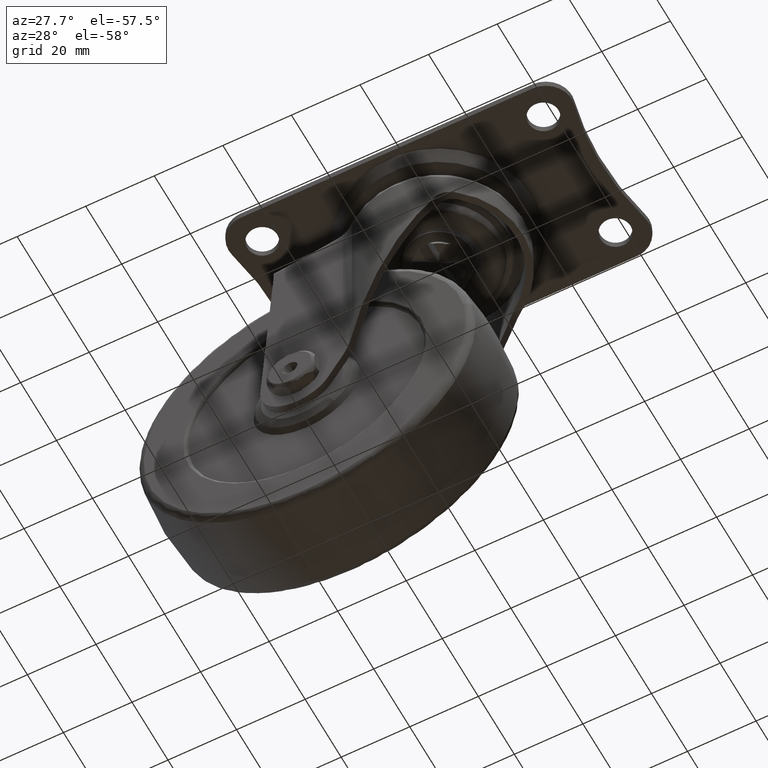
[diagram: clean part render]
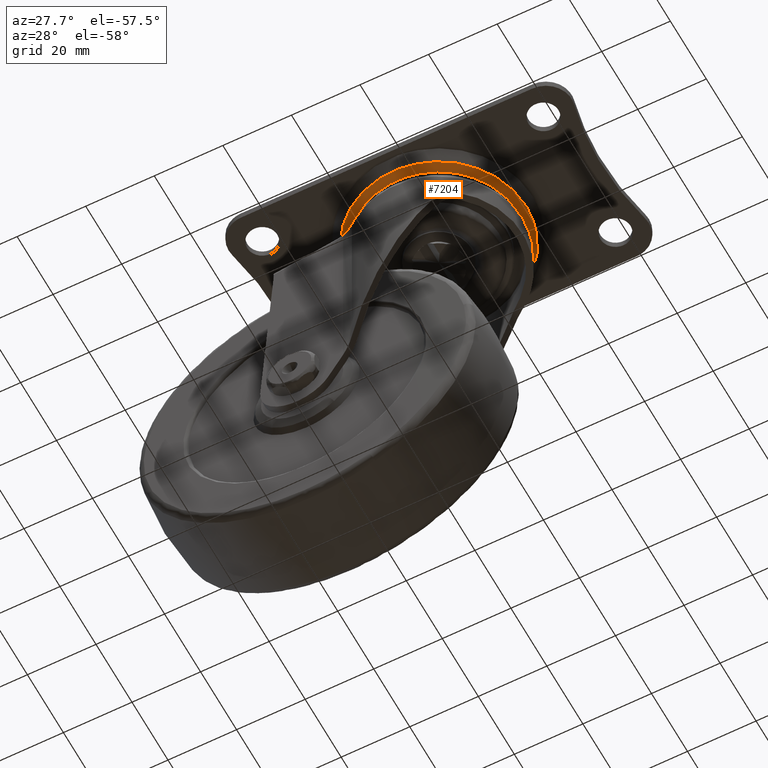
[diagram: same view with one face highlighted and labeled with its STEP entity id]
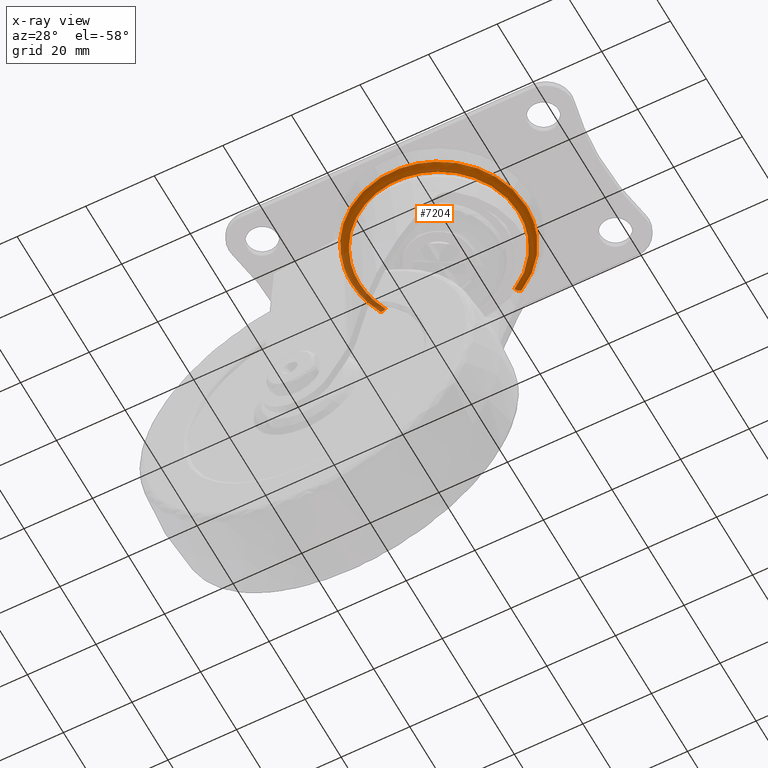
[diagram: x-ray of the same camera — body ghosted, the highlighted face saturated]
A machine part, auxiliary view. The second image highlights one B-rep face of the part: STEP entity #7204.
The next image is the same camera in x-ray: the body ghosted, the highlighted face saturated — about 13% of this face is hidden behind the body in this view.
In plain terms, the highlighted face is a freeform B-spline surface patch.
Its self-contained STEP definition (entity closure, byte-faithful):
#6093=CARTESIAN_POINT('',(1.998703049109578,-25.395930148328841,-3.840951160034021));
#6094=VERTEX_POINT('',#6093);
#6095=CARTESIAN_POINT('',(-23.687793413712789,-9.372114231411690,-3.840951160032201));
#6096=VERTEX_POINT('',#6095);
#6097=CARTESIAN_POINT('',(1.998703049109579,-25.395930148328837,-3.840951160034021));
#6098=CARTESIAN_POINT('',(1.000894236022355,-25.474459405002914,-3.840951160040765));
#6099=CARTESIAN_POINT('',(0.0,-25.474459405002911,-3.840951160040765));
#6100=CARTESIAN_POINT('',(-17.316874192751222,-25.474459405002918,-3.840951160040765));
#6101=CARTESIAN_POINT('',(-23.687793413712789,-9.372114231411690,-3.840951160032201));
#6109=(BOUNDED_CURVE()B_SPLINE_CURVE(2,(#6097,#6098,#6099,#6100,#6101),.UNSPECIFIED.,.F.,.U.)B_SPLINE_CURVE_WITH_KNOTS((3,2,3),(0.736331300632266,0.750000000000000,0.937532549938777),.UNSPECIFIED.)CURVE()GEOMETRIC_REPRESENTATION_ITEM()RATIONAL_B_SPLINE_CURVE((0.969723356170771,0.983986122580764,1.0,0.780291951264548,0.890203187500555))REPRESENTATION_ITEM(''));
#6110=EDGE_CURVE('',#6094,#6096,#6109,.T.);
#6170=CARTESIAN_POINT('',(-25.474459405002900,-1.421085E-014,-3.840951160040765));
#6171=VERTEX_POINT('',#6170);
#6172=CARTESIAN_POINT('',(-23.687793413712789,-9.372114231411690,-3.840951160032201));
#6173=CARTESIAN_POINT('',(-25.474459405002904,-4.856358889998769,-3.840951160040765));
#6174=CARTESIAN_POINT('',(-25.474459405002900,-1.421085E-014,-3.840951160040765));
#6182=(BOUNDED_CURVE()B_SPLINE_CURVE(2,(#6172,#6173,#6174),.UNSPECIFIED.,.F.,.U.)B_SPLINE_CURVE_WITH_KNOTS((3,3),(0.937532549938777,1.0),.UNSPECIFIED.)CURVE()GEOMETRIC_REPRESENTATION_ITEM()RATIONAL_B_SPLINE_CURVE((0.890203187500556,0.926814829922000,1.0))REPRESENTATION_ITEM(''));
#6183=EDGE_CURVE('',#6096,#6171,#6182,.T.);
#6262=CARTESIAN_POINT('',(25.474459405002900,-1.421085E-014,-3.840951160040765));
#6263=VERTEX_POINT('',#6262);
#6264=CARTESIAN_POINT('',(25.474459405002900,-1.421085E-014,-3.840951160040765));
#6265=CARTESIAN_POINT('',(25.474459405002900,-23.548348054048720,-3.840951160040765));
#6266=CARTESIAN_POINT('',(1.998703049109579,-25.395930148328837,-3.840951160034022));
#6274=(BOUNDED_CURVE()B_SPLINE_CURVE(2,(#6264,#6265,#6266),.UNSPECIFIED.,.F.,.U.)B_SPLINE_CURVE_WITH_KNOTS((3,3),(0.500000000000000,0.736331300632266),.UNSPECIFIED.)CURVE()GEOMETRIC_REPRESENTATION_ITEM()RATIONAL_B_SPLINE_CURVE((1.0,0.723120658605783,0.969723356170771))REPRESENTATION_ITEM(''));
#6275=EDGE_CURVE('',#6263,#6094,#6274,.T.);
#6277=CARTESIAN_POINT('',(12.427443421680310,22.237507323791181,-3.840951160132944));
#6278=VERTEX_POINT('',#6277);
#6279=CARTESIAN_POINT('',(12.427443421680309,22.237507323791178,-3.840951160132944));
#6280=CARTESIAN_POINT('',(25.474459405002897,14.946175134784154,-3.840951160040766));
#6281=CARTESIAN_POINT('',(25.474459405002900,-1.421085E-014,-3.840951160040765));
#6289=(BOUNDED_CURVE()B_SPLINE_CURVE(2,(#6279,#6280,#6281),.UNSPECIFIED.,.F.,.U.)B_SPLINE_CURVE_WITH_KNOTS((3,3),(0.333121442956346,0.500000000000000),.UNSPECIFIED.)CURVE()GEOMETRIC_REPRESENTATION_ITEM()RATIONAL_B_SPLINE_CURVE((0.869991153567558,0.804489609106159,1.0))REPRESENTATION_ITEM(''));
#6290=EDGE_CURVE('',#6278,#6263,#6289,.T.);
#6292=CARTESIAN_POINT('',(-22.911862569542620,11.135287852820831,-3.840951160283896));
#6293=VERTEX_POINT('',#6292);
#6309=CARTESIAN_POINT('',(-25.474459405002900,-1.421085E-014,-3.840951160040765));
#6310=CARTESIAN_POINT('',(-25.474459405002904,5.862512933319895,-3.840951160040766));
#6311=CARTESIAN_POINT('',(-22.911862569542627,11.135287852820827,-3.840951160283896));
#6319=(BOUNDED_CURVE()B_SPLINE_CURVE(2,(#6309,#6310,#6311),.UNSPECIFIED.,.F.,.U.)B_SPLINE_CURVE_WITH_KNOTS((3,3),(0.0,0.074283295447301),.UNSPECIFIED.)CURVE()GEOMETRIC_REPRESENTATION_ITEM()RATIONAL_B_SPLINE_CURVE((1.0,0.912971705969478,0.877661399760906))REPRESENTATION_ITEM(''));
#6320=EDGE_CURVE('',#6171,#6293,#6319,.T.);
#7093=CARTESIAN_POINT('',(12.454787427321159,22.286436335573335,-3.724333820148434));
#7094=CARTESIAN_POINT('',(33.501060243949510,10.524714985349648,-3.724333820148433));
#7095=CARTESIAN_POINT('',(22.962275359938396,-11.159788738757012,-3.724333820148434));
#7096=CARTESIAN_POINT('',(11.802486621181398,-34.122064098695397,-3.724333820148433));
#7097=CARTESIAN_POINT('',(-11.159788738756989,-22.962275359938406,-3.724333820148434));
#7098=CARTESIAN_POINT('',(-34.122064098695382,-11.802486621181425,-3.724333820148433));
#7099=CARTESIAN_POINT('',(-22.962275359938385,11.159788738756989,-3.724333820148434));
#7100=CARTESIAN_POINT('',(12.112822033350923,21.674527860526293,-5.284952924629679));
#7101=CARTESIAN_POINT('',(32.581236976664165,10.235742706425437,-5.284952924629680));
#7102=CARTESIAN_POINT('',(22.331810682340652,-10.853379530655856,-5.284952924629681));
#7103=CARTESIAN_POINT('',(11.478431151684806,-33.185190212996503,-5.284952924629681));
#7104=CARTESIAN_POINT('',(-10.853379530655841,-22.331810682340663,-5.284952924629681));
#7105=CARTESIAN_POINT('',(-33.185190212996481,-11.478431151684834,-5.284952924629681));
#7106=CARTESIAN_POINT('',(-22.331810682340652,10.853379530655834,-5.284952924629681));
#7107=CARTESIAN_POINT('',(11.279328790326279,20.183085778098523,-5.196670251498518));
#7108=CARTESIAN_POINT('',(30.339295272686062,9.531412835182030,-5.196670251498516));
#7109=CARTESIAN_POINT('',(20.795140428539586,-10.106549561729031,-5.196670251498517));
#7110=CARTESIAN_POINT('',(10.688590866810566,-30.901689990268615,-5.196670251498518));
#7111=CARTESIAN_POINT('',(-10.106549561729016,-20.795140428539604,-5.196670251498517));
#7112=CARTESIAN_POINT('',(-30.901689990268597,-10.688590866810596,-5.196670251498518));
#7113=CARTESIAN_POINT('',(-20.795140428539586,10.106549561729009,-5.196670251498517));
#7121=(BOUNDED_SURFACE()B_SPLINE_SURFACE(2,2,((#7093,#7100,#7107),(#7094,#7101,#7108),(#7095,#7102,#7109),(#7096,#7103,#7110),(#7097,#7104,#7111),(#7098,#7105,#7112),(#7099,#7106,#7113)),.UNSPECIFIED.,.F.,.F.,.U.)B_SPLINE_SURFACE_WITH_KNOTS((3,2,2,3),(3,3),(0.0,40.608321670565367,82.908656744070981,125.208991817576600),(0.0,3.094074017858874),.UNSPECIFIED.)GEOMETRIC_REPRESENTATION_ITEM()RATIONAL_B_SPLINE_SURFACE(((0.900674987828729,0.744309147359264,0.903139414284766),(0.662323901161273,0.547338101769016,0.664136151491908),(0.921401169278073,0.761437064367111,0.923922306701536),(0.651529014989739,0.538417311660762,0.653311728358173),(0.921401169278073,0.761437064367111,0.923922306701536),(0.651529014989739,0.538417311660762,0.653311728358173),(0.921401169278073,0.761437064367111,0.923922306701536)))REPRESENTATION_ITEM('')SURFACE());
#7122=CARTESIAN_POINT('',(11.342263183430330,20.295699771049701,-5.200001000000022));
#7123=VERTEX_POINT('',#7122);
#7124=CARTESIAN_POINT('',(23.249997058209200,-1.421085E-014,-5.200001000000000));
#7125=VERTEX_POINT('',#7124);
#7126=CARTESIAN_POINT('',(11.342263183430333,20.295699771049701,-5.200001000000023));
#7127=CARTESIAN_POINT('',(23.249997058209196,13.641056023531879,-5.200001000000001));
#7128=CARTESIAN_POINT('',(23.249997058209200,-1.421085E-014,-5.200001000000000));
#7136=(BOUNDED_CURVE()B_SPLINE_CURVE(2,(#7126,#7127,#7128),.UNSPECIFIED.,.F.,.U.)B_SPLINE_CURVE_WITH_KNOTS((3,3),(0.333121442957264,0.500000000000000),.UNSPECIFIED.)CURVE()GEOMETRIC_REPRESENTATION_ITEM()RATIONAL_B_SPLINE_CURVE((0.869991153566837,0.804489609107235,1.0))REPRESENTATION_ITEM(''));
#7137=EDGE_CURVE('',#7123,#7125,#7136,.T.);
#7138=ORIENTED_EDGE('',*,*,#7137,.F.);
#7139=CARTESIAN_POINT('',(12.427443421680309,22.237507323791174,-3.840951160132944));
#7140=CARTESIAN_POINT('',(12.087384780119155,21.629010766958086,-5.200000997055625));
#7141=CARTESIAN_POINT('',(11.342263183430337,20.295699771049691,-5.200001000000023));
#7149=(BOUNDED_CURVE()B_SPLINE_CURVE(2,(#7139,#7140,#7141),.UNSPECIFIED.,.F.,.U.)B_SPLINE_CURVE_WITH_KNOTS((3,3),(-1.643915708421298,-0.344913402665179),.UNSPECIFIED.)CURVE()GEOMETRIC_REPRESENTATION_ITEM()RATIONAL_B_SPLINE_CURVE((0.887122846960591,0.757973233246360,0.889363382436210))REPRESENTATION_ITEM(''));
#7150=EDGE_CURVE('',#6278,#7123,#7149,.T.);
#7151=ORIENTED_EDGE('',*,*,#7150,.F.);
#7152=ORIENTED_EDGE('',*,*,#6290,.T.);
#7153=ORIENTED_EDGE('',*,*,#6275,.T.);
#7154=ORIENTED_EDGE('',*,*,#6110,.T.);
#7155=ORIENTED_EDGE('',*,*,#6183,.T.);
#7156=ORIENTED_EDGE('',*,*,#6320,.T.);
#7157=CARTESIAN_POINT('',(-20.911169461420389,10.162940293203111,-5.200001000000022));
#7158=VERTEX_POINT('',#7157);
#7159=CARTESIAN_POINT('',(-22.911862569542624,11.135287852820831,-3.840951160283896));
#7160=CARTESIAN_POINT('',(-22.284913280879206,10.830587142510383,-5.200000988419041));
#7161=CARTESIAN_POINT('',(-20.911169461420396,10.162940293203105,-5.200001000000023));
#7169=(BOUNDED_CURVE()B_SPLINE_CURVE(2,(#7159,#7160,#7161),.UNSPECIFIED.,.F.,.U.)B_SPLINE_CURVE_WITH_KNOTS((3,3),(-1.643915708252432,-0.344913409718385),.UNSPECIFIED.)CURVE()GEOMETRIC_REPRESENTATION_ITEM()RATIONAL_B_SPLINE_CURVE((0.907537168787547,0.775415586637063,0.909829261663675))REPRESENTATION_ITEM(''));
#7170=EDGE_CURVE('',#6293,#7158,#7169,.T.);
#7171=ORIENTED_EDGE('',*,*,#7170,.T.);
#7172=CARTESIAN_POINT('',(-23.249997058209200,-1.421085E-014,-5.200001000000000));
#7173=VERTEX_POINT('',#7172);
#7174=CARTESIAN_POINT('',(-23.249997058209200,-1.421085E-014,-5.200001000000000));
#7175=CARTESIAN_POINT('',(-23.249997058209207,5.350590813141133,-5.200001000000000));
#7176=CARTESIAN_POINT('',(-20.911169461420393,10.162940293203107,-5.200001000000022));
#7184=(BOUNDED_CURVE()B_SPLINE_CURVE(2,(#7174,#7175,#7176),.UNSPECIFIED.,.F.,.U.)B_SPLINE_CURVE_WITH_KNOTS((3,3),(0.0,0.074283295451652),.UNSPECIFIED.)CURVE()GEOMETRIC_REPRESENTATION_ITEM()RATIONAL_B_SPLINE_CURVE((1.0,0.912971705964380,0.877661399756770))REPRESENTATION_ITEM(''));
#7185=EDGE_CURVE('',#7173,#7158,#7184,.T.);
#7186=ORIENTED_EDGE('',*,*,#7185,.F.);
#7187=CARTESIAN_POINT('',(23.249997058209200,-1.421085E-014,-5.200001000000000));
#7188=CARTESIAN_POINT('',(23.249997058209207,-23.249997058209221,-5.200001000000000));
#7189=CARTESIAN_POINT('',(0.0,-23.249997058209221,-5.200001000000000));
#7190=CARTESIAN_POINT('',(-23.249997058209207,-23.249997058209221,-5.200001000000000));
#7191=CARTESIAN_POINT('',(-23.249997058209200,-1.421085E-014,-5.200001000000000));
#7199=(BOUNDED_CURVE()B_SPLINE_CURVE(2,(#7187,#7188,#7189,#7190,#7191),.UNSPECIFIED.,.F.,.U.)B_SPLINE_CURVE_WITH_KNOTS((3,2,3),(0.500000000000000,0.750000000000000,1.0),.UNSPECIFIED.)CURVE()GEOMETRIC_REPRESENTATION_ITEM()RATIONAL_B_SPLINE_CURVE((1.0,0.707106781186547,1.0,0.707106781186547,1.0))REPRESENTATION_ITEM(''));
#7200=EDGE_CURVE('',#7125,#7173,#7199,.T.);
#7201=ORIENTED_EDGE('',*,*,#7200,.F.);
#7202=EDGE_LOOP('',(#7138,#7151,#7152,#7153,#7154,#7155,#7156,#7171,#7186,#7201));
#7203=FACE_OUTER_BOUND('',#7202,.T.);
#7204=ADVANCED_FACE('',(#7203),#7121,.T.);